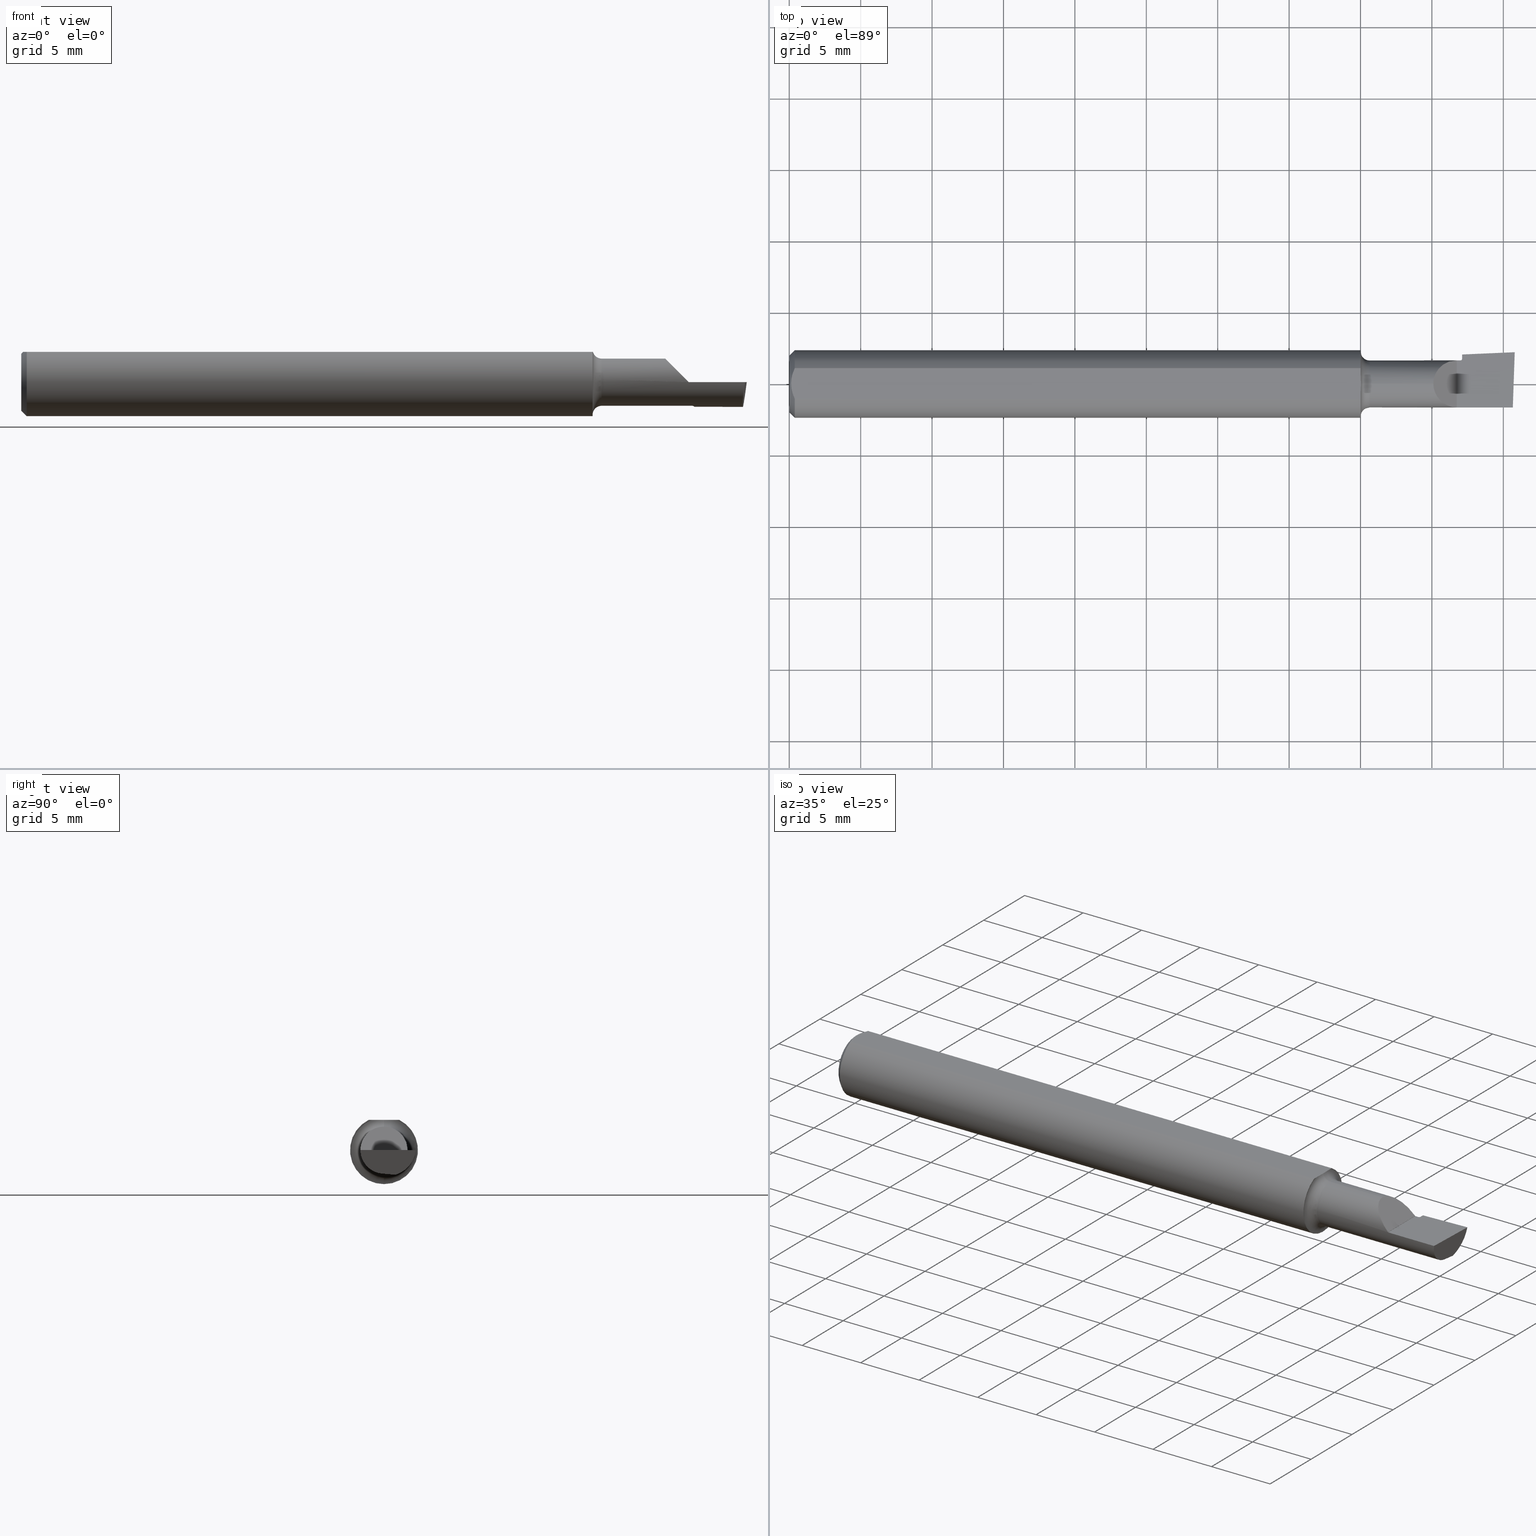
[diagram: canonical four-view strip — front | top / right | iso, engineering-drawing reading convention]
A machine part, canonical four-view strip (front | top / right | iso — engineering-drawing reading convention). The complete STEP part file that produces these views, byte-faithful:
ISO-10303-21;
HEADER;
FILE_DESCRIPTION (( 'STEP AP203' ),
    '1' );
FILE_NAME ('210228-BB153.STEP',
    '2024-04-17T21:50:22',
    ( '' ),
    ( '' ),
    'SwSTEP 2.0',
    'SolidWorks 2022',
    '' );
FILE_SCHEMA (( 'CONFIG_CONTROL_DESIGN' ));
ENDSEC;

DATA;
#1 = CARTESIAN_POINT ( 'NONE',  ( 2.000000000000000444, 0.000000000000000000, 0.000000000000000000 ) ) ;
#2 = CARTESIAN_POINT ( 'NONE',  ( 0.000000000000000000, 0.04793338999999999933, 0.08360000000000000764 ) ) ;
#3 = APPROVAL_DATE_TIME ( #458, #214 ) ;
#4 = CARTESIAN_POINT ( 'NONE',  ( 0.000000000000000000, 0.000000000000000000, 0.000000000000000000 ) ) ;
#5 = ORIENTED_EDGE ( 'NONE', *, *, #109, .F. ) ;
#6 = AXIS2_PLACEMENT_3D ( 'NONE', #2, #197, #360 ) ;
#7 = AXIS2_PLACEMENT_3D ( 'NONE', #21, #379, #319 ) ;
#8 = CARTESIAN_POINT ( 'NONE',  ( 0.01203159747439211912, 0.03549478314559915276, 0.08360000000000003539 ) ) ;
#9 =( BOUNDED_CURVE ( )  B_SPLINE_CURVE ( 3, ( #621, #160, #376, #426 ),
 .UNSPECIFIED., .F., .T. ) 
 B_SPLINE_CURVE_WITH_KNOTS ( ( 4, 4 ),
 ( 0.000000000000000000, 1.561565426471250406 ),
 .UNSPECIFIED. ) 
 CURVE ( )  GEOMETRIC_REPRESENTATION_ITEM ( )  RATIONAL_B_SPLINE_CURVE ( ( 1.000000000000000000, 0.8069085694611369819, 0.8069085694611369819, 1.000000000000000000 ) ) 
 REPRESENTATION_ITEM ( '' )  );
#10 = ORIENTED_EDGE ( 'NONE', *, *, #42, .T. ) ;
#11 = EDGE_CURVE ( 'NONE', #529, #566, #76, .T. ) ;
#12 = PLANE ( 'NONE',  #527 ) ;
#13 = CARTESIAN_POINT ( 'NONE',  ( 0.000000000000000000, 7.960204194457796709E-18, -0.06500000000000000222 ) ) ;
#14 = EDGE_CURVE ( 'NONE', #72, #154, #625, .T. ) ;
#15 = CARTESIAN_POINT ( 'NONE',  ( 0.005000000000001862330, 0.007340705555993278647, 0.08359999999999999376 ) ) ;
#16 = ORIENTED_EDGE ( 'NONE', *, *, #560, .T. ) ;
#17 = VECTOR ( 'NONE', #165, 39.37007874015748143 ) ;
#18 = APPROVAL_STATUS ( 'not_yet_approved' ) ;
#19 = EDGE_CURVE ( 'NONE', #222, #607, #577, .T. ) ;
#20 = TOROIDAL_SURFACE ( 'NONE', #293, 0.06999999999999999278, 0.005000000000000000104 ) ;
#21 = CARTESIAN_POINT ( 'NONE',  ( 1.599999999999999867, 0.000000000000000000, 0.000000000000000000 ) ) ;
#22 = ORIENTED_EDGE ( 'NONE', *, *, #85, .F. ) ;
#23 = PRODUCT_RELATED_PRODUCT_CATEGORY ( 'detail', '', ( #54 ) ) ;
#24 = LINE ( 'NONE', #368, #207 ) ;
#25 = CARTESIAN_POINT ( 'NONE',  ( 1.987646440754240684, -0.05308570468329874836, -0.06060389208524382537 ) ) ;
#26 = ORIENTED_EDGE ( 'NONE', *, *, #221, .F. ) ;
#27 = DIRECTION ( 'NONE',  ( -1.000000000000000000, -0.000000000000000000, -0.000000000000000000 ) ) ;
#28 = ORIENTED_EDGE ( 'NONE', *, *, #530, .T. ) ;
#29 = UNCERTAINTY_MEASURE_WITH_UNIT (LENGTH_MEASURE( 1.000000000000000082E-05 ), #409, 'distance_accuracy_value', 'NONE');
#30 = CIRCLE ( 'NONE', #44, 0.06999999999999999278 ) ;
#31 = CARTESIAN_POINT ( 'NONE',  ( 1.850000000000000311, -0.005665123278597547149, -0.06475265537596341936 ) ) ;
#32 = CONICAL_SURFACE ( 'NONE', #615, 0.09360000000000001652, 0.7853981633974471688 ) ;
#33 = DIRECTION ( 'NONE',  ( 0.000000000000000000, 0.000000000000000000, -1.000000000000000000 ) ) ;
#34 =( BOUNDED_CURVE ( )  B_SPLINE_CURVE ( 3, ( #333, #533, #342, #77 ),
 .UNSPECIFIED., .F., .T. ) 
 B_SPLINE_CURVE_WITH_KNOTS ( ( 4, 4 ),
 ( 4.721619880708336048, 6.283185307179586232 ),
 .UNSPECIFIED. ) 
 CURVE ( )  GEOMETRIC_REPRESENTATION_ITEM ( )  RATIONAL_B_SPLINE_CURVE ( ( 1.000000000000000000, 0.8069085694611370929, 0.8069085694611370929, 1.000000000000000000 ) ) 
 REPRESENTATION_ITEM ( '' )  );
#35 = CARTESIAN_POINT ( 'NONE',  ( 1.855000000000000648, 0.01579369460331282032, -0.06663005867329796494 ) ) ;
#36 = DIRECTION ( 'NONE',  ( -0.9990482215818576872, -0.04361938736533622213, 0.000000000000000000 ) ) ;
#37 = CARTESIAN_POINT ( 'NONE',  ( 1.994651758480620707, -0.06499966425809539095, -0.0002089170526278407846 ) ) ;
#38 = EDGE_CURVE ( 'NONE', #502, #429, #117, .T. ) ;
#39 = CARTESIAN_POINT ( 'NONE',  ( 1.840000000000000302, 0.09359999999999998876, -1.868634782302818344E-17 ) ) ;
#40 = ORIENTED_EDGE ( 'NONE', *, *, #558, .F. ) ;
#41 = CARTESIAN_POINT ( 'NONE',  ( 1.999986001855434736, 0.08759761744008441597, -1.868634782302818344E-17 ) ) ;
#42 = EDGE_CURVE ( 'NONE', #237, #566, #479, .T. ) ;
#43 = DIRECTION ( 'NONE',  ( -1.000000000000000000, -0.000000000000000000, -0.000000000000000000 ) ) ;
#44 = AXIS2_PLACEMENT_3D ( 'NONE', #505, #250, #555 ) ;
#45 = AXIS2_PLACEMENT_3D ( 'NONE', #223, #116, #627 ) ;
#46 = EDGE_LOOP ( 'NONE', ( #513, #618, #182, #332, #158, #5, #366, #211 ) ) ;
#47 = CARTESIAN_POINT ( 'NONE',  ( 1.757000000000000783, 0.04793338999999999933, 0.08360000000000000764 ) ) ;
#48 = ORIENTED_EDGE ( 'NONE', *, *, #14, .F. ) ;
#49 = DIRECTION ( 'NONE',  ( 0.000000000000000000, 0.000000000000000000, -1.000000000000000000 ) ) ;
#50 = DIRECTION ( 'NONE',  ( 0.000000000000000000, 0.000000000000000000, 1.000000000000000000 ) ) ;
#51 = LINE ( 'NONE', #509, #372 ) ;
#52 = CIRCLE ( 'NONE', #81, 0.06500000000000000222 ) ;
#53 = DIRECTION ( 'NONE',  ( 0.000000000000000000, 0.000000000000000000, 1.000000000000000000 ) ) ;
#54 = PRODUCT ( '210228-BB153', '210228-BB153', '', ( #251 ) ) ;
#55 = CALENDAR_DATE ( 2024, 17, 4 ) ;
#56 = CARTESIAN_POINT ( 'NONE',  ( 1.599999999999999867, 0.000000000000000000, 0.08999999999999999667 ) ) ;
#57 = ADVANCED_FACE ( 'NONE', ( #633 ), #248, .T. ) ;
#58 = VERTEX_POINT ( 'NONE', #434 ) ;
#59 = FACE_OUTER_BOUND ( 'NONE', #79, .T. ) ;
#60 = ORIENTED_EDGE ( 'NONE', *, *, #570, .T. ) ;
#61 = CLOSED_SHELL ( 'NONE', ( #347, #437, #57, #501, #508, #663, #274, #261, #408, #298, #357, #321, #64, #156, #325, #413, #659, #375 ) ) ;
#62 = AXIS2_PLACEMENT_3D ( 'NONE', #114, #74, #571 ) ;
#63 = LINE ( 'NONE', #632, #381 ) ;
#64 = ADVANCED_FACE ( 'NONE', ( #178 ), #343, .F. ) ;
#65 = DIRECTION ( 'NONE',  ( -0.000000000000000000, 0.000000000000000000, 1.000000000000000000 ) ) ;
#66 = VERTEX_POINT ( 'NONE', #386 ) ;
#67 = ORIENTED_EDGE ( 'NONE', *, *, #539, .F. ) ;
#68 = AXIS2_PLACEMENT_3D ( 'NONE', #193, #512, #53 ) ;
#69 = CALENDAR_DATE ( 2024, 17, 4 ) ;
#70 = DIRECTION ( 'NONE',  ( -1.000000000000000000, -0.000000000000000000, -0.000000000000000000 ) ) ;
#71 = ORIENTED_EDGE ( 'NONE', *, *, #109, .T. ) ;
#72 = VERTEX_POINT ( 'NONE', #597 ) ;
#73 = DESIGN_CONTEXT ( 'detailed design', #535, 'design' ) ;
#74 = DIRECTION ( 'NONE',  ( 0.9990482215818577982, 0.04361938736533622213, -0.000000000000000000 ) ) ;
#75 = ORIENTED_EDGE ( 'NONE', *, *, #367, .T. ) ;
#76 =( BOUNDED_CURVE ( )  B_SPLINE_CURVE ( 3, ( #320, #168, #260, #468 ),
 .UNSPECIFIED., .F., .T. ) 
 B_SPLINE_CURVE_WITH_KNOTS ( ( 4, 4 ),
 ( 4.991545124274583856, 6.471860874433886579 ),
 .UNSPECIFIED. ) 
 CURVE ( )  GEOMETRIC_REPRESENTATION_ITEM ( )  RATIONAL_B_SPLINE_CURVE ( ( 1.000000000000000000, 0.8255747308461860445, 0.8255747308461860445, 1.000000000000000000 ) ) 
 REPRESENTATION_ITEM ( '' )  );
#77 = CARTESIAN_POINT ( 'NONE',  ( 1.775600000000000511, 0.000000000000000000, 0.06500000000000000222 ) ) ;
#78 = LINE ( 'NONE', #438, #139 ) ;
#79 = EDGE_LOOP ( 'NONE', ( #113, #185, #10, #351, #401 ) ) ;
#80 = CARTESIAN_POINT ( 'NONE',  ( 1.852369354669507473, 0.002826491639987216854, -0.06549557541636719105 ) ) ;
#81 = AXIS2_PLACEMENT_3D ( 'NONE', #635, #382, #653 ) ;
#82 = DIRECTION ( 'NONE',  ( -0.7071067811865463515, 0.000000000000000000, 0.7071067811865486830 ) ) ;
#83 = CARTESIAN_POINT ( 'NONE',  ( 0.01500000000000188856, 0.000000000000000000, 0.000000000000000000 ) ) ;
#84 = LINE ( 'NONE', #125, #430 ) ;
#85 = EDGE_CURVE ( 'NONE', #335, #429, #302, .T. ) ;
#86 = ORIENTED_EDGE ( 'NONE', *, *, #42, .F. ) ;
#87 = DIRECTION ( 'NONE',  ( 0.000000000000000000, 0.000000000000000000, 1.000000000000000000 ) ) ;
#88 = DIRECTION ( 'NONE',  ( -1.000000000000000000, 0.000000000000000000, -0.000000000000000000 ) ) ;
#89 = ORIENTED_EDGE ( 'NONE', *, *, #247, .T. ) ;
#90 = APPLICATION_PROTOCOL_DEFINITION ( 'international standard', 'config_control_design', 1994, #499 ) ;
#91 = LINE ( 'NONE', #492, #228 ) ;
#92 = AXIS2_PLACEMENT_3D ( 'NONE', #1, #291, #50 ) ;
#93 = ORIENTED_EDGE ( 'NONE', *, *, #456, .F. ) ;
#94 = APPROVAL_STATUS ( 'not_yet_approved' ) ;
#95 = DIRECTION ( 'NONE',  ( 1.000000000000000000, 8.516783790608731163E-18, -1.073631536549218441E-16 ) ) ;
#96 = VERTEX_POINT ( 'NONE', #547 ) ;
#97 = DIRECTION ( 'NONE',  ( 0.000000000000000000, 0.000000000000000000, 1.000000000000000000 ) ) ;
#98 = DIRECTION ( 'NONE',  ( 0.000000000000000000, 0.000000000000000000, 1.000000000000000000 ) ) ;
#99 = CC_DESIGN_PERSON_AND_ORGANIZATION_ASSIGNMENT ( #658, #403, ( #306 ) ) ;
#100 = DATE_AND_TIME ( #245, #268 ) ;
#101 = CARTESIAN_POINT ( 'NONE',  ( 2.000001177757728232, 0.08803385514183426075, -1.868634782302818344E-17 ) ) ;
#102 = AXIS2_PLACEMENT_3D ( 'NONE', #4, #400, #204 ) ;
#103 = APPROVAL_ROLE ( '' ) ;
#104 = EDGE_CURVE ( 'NONE', #519, #429, #550, .T. ) ;
#105 = DIRECTION ( 'NONE',  ( -1.000000000000000000, -0.000000000000000000, -0.000000000000000000 ) ) ;
#106 = ORIENTED_EDGE ( 'NONE', *, *, #279, .T. ) ;
#107 = DIRECTION ( 'NONE',  ( 0.000000000000000000, 0.000000000000000000, -1.000000000000000000 ) ) ;
#108 = ORIENTED_EDGE ( 'NONE', *, *, #85, .T. ) ;
#109 = EDGE_CURVE ( 'NONE', #639, #222, #78, .T. ) ;
#110 = CIRCLE ( 'NONE', #623, 0.08999999999999999667 ) ;
#111 = CC_DESIGN_APPROVAL ( #214, ( #176 ) ) ;
#112 = LINE ( 'NONE', #619, #582 ) ;
#113 = ORIENTED_EDGE ( 'NONE', *, *, #201, .F. ) ;
#114 = CARTESIAN_POINT ( 'NONE',  ( 1.999999999999999778, 0.008000000000000007105, 0.008000000000000000167 ) ) ;
#115 = ORIENTED_EDGE ( 'NONE', *, *, #292, .T. ) ;
#116 = DIRECTION ( 'NONE',  ( -0.9919466430058313522, 0.03450798790307643693, 0.1218649096349841282 ) ) ;
#117 = LINE ( 'NONE', #427, #451 ) ;
#118 = VECTOR ( 'NONE', #345, 39.37007874015748143 ) ;
#119 = CARTESIAN_POINT ( 'NONE',  ( 0.01500000000000188856, 0.04209513035969836975, 0.08360000000000000764 ) ) ;
#120 = ORIENTED_EDGE ( 'NONE', *, *, #264, .F. ) ;
#121 = CARTESIAN_POINT ( 'NONE',  ( 1.840000000000000302, 0.000000000000000000, 0.000000000000000000 ) ) ;
#122 = CARTESIAN_POINT ( 'NONE',  ( 0.005000000000001869269, 1.023804700932481731E-17, 0.08360000000000000764 ) ) ;
#123 = ORIENTED_EDGE ( 'NONE', *, *, #194, .F. ) ;
#124 = DIRECTION ( 'NONE',  ( -0.000000000000000000, 0.000000000000000000, -1.000000000000000000 ) ) ;
#125 = CARTESIAN_POINT ( 'NONE',  ( 1.840000000000000302, 0.09359999999999998876, 0.0006000000000001076087 ) ) ;
#126 = EDGE_CURVE ( 'NONE', #544, #639, #110, .T. ) ;
#127 = EDGE_LOOP ( 'NONE', ( #22, #340, #273, #213 ) ) ;
#128 = VECTOR ( 'NONE', #604, 39.37007874015748143 ) ;
#129 = CARTESIAN_POINT ( 'NONE',  ( 1.999986001855434736, 0.08759761744008441597, -1.868634782302818344E-17 ) ) ;
#130 = CIRCLE ( 'NONE', #7, 0.06500000000000000222 ) ;
#131 = CARTESIAN_POINT ( 'NONE',  ( 0.005981945000910308084, -0.01453549720624408223, 0.08360000000000000764 ) ) ;
#132 = CARTESIAN_POINT ( 'NONE',  ( 0.005000000000001869269, 1.023804700932481731E-17, 0.08360000000000000764 ) ) ;
#133 = DIRECTION ( 'NONE',  ( 0.000000000000000000, 0.000000000000000000, 1.000000000000000000 ) ) ;
#134 = ORIENTED_EDGE ( 'NONE', *, *, #147, .T. ) ;
#135 = DIRECTION ( 'NONE',  ( 0.000000000000000000, 0.000000000000000000, -1.000000000000000000 ) ) ;
#136 = CARTESIAN_POINT ( 'NONE',  ( 0.01500000000000188856, 0.000000000000000000, 0.000000000000000000 ) ) ;
#137 = EDGE_LOOP ( 'NONE', ( #172, #553 ) ) ;
#138 = APPLICATION_PROTOCOL_DEFINITION ( 'international standard', 'config_control_design', 1994, #535 ) ;
#139 = VECTOR ( 'NONE', #542, 39.37007874015748143 ) ;
#140 = CARTESIAN_POINT ( 'NONE',  ( 1.855000000000000204, 0.02021677419128700345, -0.06701702799511861930 ) ) ;
#141 = CIRCLE ( 'NONE', #240, 0.07859999999999815745 ) ;
#142 = EDGE_LOOP ( 'NONE', ( #89, #348, #418, #391, #572, #620, #637 ) ) ;
#143 = DATE_AND_TIME ( #454, #507 ) ;
#144 = EDGE_CURVE ( 'NONE', #583, #607, #642, .T. ) ;
#145 = DIRECTION ( 'NONE',  ( -1.000000000000000000, -0.000000000000000000, -0.000000000000000000 ) ) ;
#146 = CARTESIAN_POINT ( 'NONE',  ( 1.989694924637884332, 0.03212651270882478649, -0.06805899510096122262 ) ) ;
#147 = EDGE_CURVE ( 'NONE', #66, #58, #84, .T. ) ;
#148 = DATE_TIME_ROLE ( 'creation_date' ) ;
#149 = DIRECTION ( 'NONE',  ( 0.000000000000000000, 0.08715574274765823526, 0.9961946980917455452 ) ) ;
#150 = CIRCLE ( 'NONE', #217, 0.09360000000000001652 ) ;
#151 = EDGE_CURVE ( 'NONE', #335, #237, #457, .T. ) ;
#152 =( NAMED_UNIT ( * ) SI_UNIT ( $, .STERADIAN. ) SOLID_ANGLE_UNIT ( ) );
#153 = CARTESIAN_POINT ( 'NONE',  ( -3.937007874019685528E-05, -0.005665123278597553221, -0.06475265537596341936 ) ) ;
#154 = VERTEX_POINT ( 'NONE', #287 ) ;
#155 = COORDINATED_UNIVERSAL_TIME_OFFSET ( 8, 0, .BEHIND. ) ;
#156 = ADVANCED_FACE ( 'NONE', ( #593 ), #446, .F. ) ;
#157 = DIRECTION ( 'NONE',  ( -1.000000000000000000, -0.000000000000000000, -0.000000000000000000 ) ) ;
#158 = ORIENTED_EDGE ( 'NONE', *, *, #19, .F. ) ;
#159 = SHAPE_DEFINITION_REPRESENTATION ( #546, #651 ) ;
#160 = CARTESIAN_POINT ( 'NONE',  ( 1.775600000000000955, -0.03779801798803825857, 0.06500000000000000222 ) ) ;
#161 = VERTEX_POINT ( 'NONE', #236 ) ;
#162 = AXIS2_PLACEMENT_3D ( 'NONE', #308, #145, #98 ) ;
#163 = CC_DESIGN_PERSON_AND_ORGANIZATION_ASSIGNMENT ( #466, #524, ( #176 ) ) ;
#164 = DIRECTION ( 'NONE',  ( -0.000000000000000000, 1.000000000000000000, 1.224646799147353207E-16 ) ) ;
#165 = DIRECTION ( 'NONE',  ( -1.000000000000000000, -0.000000000000000000, -0.000000000000000000 ) ) ;
#166 = DATE_AND_TIME ( #69, #198 ) ;
#167 = DIRECTION ( 'NONE',  ( -1.000000000000000000, -0.000000000000000000, -0.000000000000000000 ) ) ;
#168 = CARTESIAN_POINT ( 'NONE',  ( 1.990306868046896271, -0.06488588929797120541, -0.03560734009195623551 ) ) ;
#169 = ORIENTED_EDGE ( 'NONE', *, *, #151, .F. ) ;
#170 = DATE_AND_TIME ( #218, #341 ) ;
#171 = DIRECTION ( 'NONE',  ( 1.000000000000000000, 0.000000000000000000, 0.000000000000000000 ) ) ;
#172 = ORIENTED_EDGE ( 'NONE', *, *, #224, .T. ) ;
#173 = EDGE_CURVE ( 'NONE', #271, #629, #91, .T. ) ;
#174 = VECTOR ( 'NONE', #95, 39.37007874015748143 ) ;
#175 = ORIENTED_EDGE ( 'NONE', *, *, #147, .F. ) ;
#176 = PRODUCT_DEFINITION_FORMATION_WITH_SPECIFIED_SOURCE ( 'ANY', '', #54, .NOT_KNOWN. ) ;
#177 = CARTESIAN_POINT ( 'NONE',  ( 1.575000000000000178, -0.02777769619496649883, 0.08360000000000000764 ) ) ;
#178 = FACE_OUTER_BOUND ( 'NONE', #378, .T. ) ;
#179 = CARTESIAN_POINT ( 'NONE',  ( 1.840000000000000302, 0.09359999999999998876, -1.868634782302818344E-17 ) ) ;
#180 = EDGE_CURVE ( 'NONE', #222, #161, #150, .T. ) ;
#181 = DIRECTION ( 'NONE',  ( 0.000000000000000000, -0.9961946980917454342, 0.08715574274765822138 ) ) ;
#182 = ORIENTED_EDGE ( 'NONE', *, *, #441, .T. ) ;
#183 = CARTESIAN_POINT ( 'NONE',  ( 1.855000000000000204, 0.02021677419128700345, -0.06701702799511861930 ) ) ;
#184 = CARTESIAN_POINT ( 'NONE',  ( 1.850000000000000311, 0.000000000000000000, 0.000000000000000000 ) ) ;
#185 = ORIENTED_EDGE ( 'NONE', *, *, #151, .T. ) ;
#186 = AXIS2_PLACEMENT_3D ( 'NONE', #184, #43, #338 ) ;
#187 = DIRECTION ( 'NONE',  ( -1.000000000000000000, -0.000000000000000000, -0.000000000000000000 ) ) ;
#188 = LINE ( 'NONE', #641, #304 ) ;
#189 = ORIENTED_EDGE ( 'NONE', *, *, #11, .F. ) ;
#190 = LINE ( 'NONE', #549, #118 ) ;
#191 = DIRECTION ( 'NONE',  ( 0.7071067811865483499, 0.000000000000000000, -0.7071067811865466846 ) ) ;
#192 = ORIENTED_EDGE ( 'NONE', *, *, #264, .T. ) ;
#193 = CARTESIAN_POINT ( 'NONE',  ( 1.599999999999999867, 0.000000000000000000, 0.000000000000000000 ) ) ;
#194 = EDGE_CURVE ( 'NONE', #587, #72, #238, .T. ) ;
#195 = ORIENTED_EDGE ( 'NONE', *, *, #480, .T. ) ;
#196 = APPROVAL_DATE_TIME ( #100, #337 ) ;
#197 = DIRECTION ( 'NONE',  ( -0.000000000000000000, 0.000000000000000000, -1.000000000000000000 ) ) ;
#198 = LOCAL_TIME ( 14, 50, 22.00000000000000000, #626 ) ;
#199 = DIRECTION ( 'NONE',  ( 0.1218275818249038717, -0.003190167502629706348, 0.9925461516413236485 ) ) ;
#200 = CARTESIAN_POINT ( 'NONE',  ( 1.775600000000000511, 0.000000000000000000, 0.06500000000000000222 ) ) ;
#201 = EDGE_CURVE ( 'NONE', #335, #356, #188, .T. ) ;
#202 = CARTESIAN_POINT ( 'NONE',  ( 1.850000000000000311, 0.000000000000000000, 0.000000000000000000 ) ) ;
#203 = FACE_OUTER_BOUND ( 'NONE', #137, .T. ) ;
#204 = DIRECTION ( 'NONE',  ( 0.000000000000000000, 0.000000000000000000, 1.000000000000000000 ) ) ;
#205 = VECTOR ( 'NONE', #36, 39.37007874015748143 ) ;
#206 = ORIENTED_EDGE ( 'NONE', *, *, #224, .F. ) ;
#207 = VECTOR ( 'NONE', #474, 39.37007874015748143 ) ;
#208 = B_SPLINE_CURVE_WITH_KNOTS ( 'NONE', 3,
 ( #385, #588, #80, #281, #35, #183 ),
 .UNSPECIFIED., .F., .F.,
 ( 4, 2, 4 ),
 ( -8.126499861902691755E-06, 0.0003288128753654290639, 0.0006657522505927608754 ),
 .UNSPECIFIED. ) ;
#209 = PERSON_AND_ORGANIZATION ( #631, #463 ) ;
#210 = CARTESIAN_POINT ( 'NONE',  ( 0.009483687754785769669, 0.02856776309113262177, 0.08360000000000003539 ) ) ;
#211 = ORIENTED_EDGE ( 'NONE', *, *, #536, .F. ) ;
#212 = CARTESIAN_POINT ( 'NONE',  ( 1.855000000000000204, 0.06500000000000000222, 0.000000000000000000 ) ) ;
#213 = ORIENTED_EDGE ( 'NONE', *, *, #38, .T. ) ;
#214 = APPROVAL ( #563, 'UNSPECIFIED' ) ;
#215 = CARTESIAN_POINT ( 'NONE',  ( 1.575000000000000178, 0.1650000000000000078, 0.000000000000000000 ) ) ;
#216 = ORIENTED_EDGE ( 'NONE', *, *, #313, .T. ) ;
#217 = AXIS2_PLACEMENT_3D ( 'NONE', #484, #442, #33 ) ;
#218 = CALENDAR_DATE ( 2024, 17, 4 ) ;
#219 = DIRECTION ( 'NONE',  ( 1.000000000000000000, -0.000000000000000000, -0.000000000000000000 ) ) ;
#220 = ORIENTED_EDGE ( 'NONE', *, *, #126, .T. ) ;
#221 = EDGE_CURVE ( 'NONE', #435, #544, #493, .T. ) ;
#222 = VERTEX_POINT ( 'NONE', #645 ) ;
#223 = CARTESIAN_POINT ( 'NONE',  ( 1.939086209087548252, 0.08959508375131486346, -0.4962730758206617687 ) ) ;
#224 = EDGE_CURVE ( 'NONE', #271, #574, #605, .T. ) ;
#225 = DIRECTION ( 'NONE',  ( -0.02394144769889285790, -0.9959091512946225411, 0.08713076064000384313 ) ) ;
#226 = CARTESIAN_POINT ( 'NONE',  ( 1.575666797554629461, -0.01111010775643349498, 0.08360000000000000764 ) ) ;
#227 = ORIENTED_EDGE ( 'NONE', *, *, #344, .F. ) ;
#228 = VECTOR ( 'NONE', #191, 39.37007874015748143 ) ;
#229 = ORIENTED_EDGE ( 'NONE', *, *, #486, .T. ) ;
#230 = APPROVAL_PERSON_ORGANIZATION ( #406, #337, #296 ) ;
#231 = EDGE_CURVE ( 'NONE', #356, #502, #30, .T. ) ;
#232 = CARTESIAN_POINT ( 'NONE',  ( 0.01499999999997319970, -0.04209513035984148444, 0.08360000000000000764 ) ) ;
#233 = DIRECTION ( 'NONE',  ( -1.000000000000000000, -0.000000000000000000, -0.000000000000000000 ) ) ;
#234 = CC_DESIGN_DATE_AND_TIME_ASSIGNMENT ( #143, #148, ( #306 ) ) ;
#235 = CARTESIAN_POINT ( 'NONE',  ( 1.575000000000000178, 0.02777908199770195985, 0.08360000000000000764 ) ) ;
#236 = CARTESIAN_POINT ( 'NONE',  ( 1.575000000000000178, 0.04209513035969836975, 0.08360000000000000764 ) ) ;
#237 = VERTEX_POINT ( 'NONE', #146 ) ;
#238 = CIRCLE ( 'NONE', #186, 0.06500000000000000222 ) ;
#239 = CARTESIAN_POINT ( 'NONE',  ( 1.992017512602473950, 0.06339401173841231751, -0.05800766153860094365 ) ) ;
#240 = AXIS2_PLACEMENT_3D ( 'NONE', #436, #27, #135 ) ;
#241 = CARTESIAN_POINT ( 'NONE',  ( 1.855000000000000204, 0.07804055913548293977, -0.03204518438839076139 ) ) ;
#242 = ORIENTED_EDGE ( 'NONE', *, *, #247, .F. ) ;
#243 = CARTESIAN_POINT ( 'NONE',  ( 0.009483685532752042513, -0.02856415438847174915, 0.08359999999999997988 ) ) ;
#244 = VERTEX_POINT ( 'NONE', #200 ) ;
#245 = CALENDAR_DATE ( 2024, 17, 4 ) ;
#246 = CARTESIAN_POINT ( 'NONE',  ( 0.000000000000000000, 0.000000000000000000, 0.000000000000000000 ) ) ;
#247 = EDGE_CURVE ( 'NONE', #497, #519, #665, .T. ) ;
#248 = CONICAL_SURFACE ( 'NONE', #315, 0.09360000000000001652, 0.7853981633974471688 ) ;
#249 = PLANE ( 'NONE',  #506 ) ;
#250 = DIRECTION ( 'NONE',  ( 1.000000000000000000, 0.000000000000000000, 0.000000000000000000 ) ) ;
#251 = MECHANICAL_CONTEXT ( 'NONE', #499, 'mechanical' ) ;
#252 = PLANE ( 'NONE',  #339 ) ;
#253 = ORIENTED_EDGE ( 'NONE', *, *, #650, .F. ) ;
#254 = CYLINDRICAL_SURFACE ( 'NONE', #102, 0.06500000000000000222 ) ;
#255 = CIRCLE ( 'NONE', #579, 0.06500000000000000222 ) ;
#256 = AXIS2_PLACEMENT_3D ( 'NONE', #179, #124, #541 ) ;
#257 = ORIENTED_EDGE ( 'NONE', *, *, #221, .T. ) ;
#258 = PERSON_AND_ORGANIZATION_ROLE ( 'creator' ) ;
#259 = CARTESIAN_POINT ( 'NONE',  ( 0.01500000000000188856, 0.04209513035969836975, 0.08360000000000000764 ) ) ;
#260 = CARTESIAN_POINT ( 'NONE',  ( 1.987938684748457696, -0.04092902677841792763, -0.06166746358805715728 ) ) ;
#261 = ADVANCED_FACE ( 'NONE', ( #203 ), #249, .F. ) ;
#262 = DIRECTION ( 'NONE',  ( 0.000000000000000000, 0.000000000000000000, -1.000000000000000000 ) ) ;
#263 = ORIENTED_EDGE ( 'NONE', *, *, #394, .T. ) ;
#264 = EDGE_CURVE ( 'NONE', #96, #58, #255, .T. ) ;
#265 = CARTESIAN_POINT ( 'NONE',  ( 0.000000000000000000, 0.000000000000000000, 0.06500000000000000222 ) ) ;
#266 = VERTEX_POINT ( 'NONE', #405 ) ;
#267 = AXIS2_PLACEMENT_3D ( 'NONE', #39, #88, #277 ) ;
#268 = LOCAL_TIME ( 14, 50, 22.00000000000000000, #359 ) ;
#269 = CARTESIAN_POINT ( 'NONE',  ( 0.01500000000000188856, 0.000000000000000000, 0.000000000000000000 ) ) ;
#270 = ORIENTED_EDGE ( 'NONE', *, *, #231, .F. ) ;
#271 = VERTEX_POINT ( 'NONE', #459 ) ;
#272 = CARTESIAN_POINT ( 'NONE',  ( 1.574999999999999956, 1.102182119232618065E-17, -0.08999999999999999667 ) ) ;
#273 = ORIENTED_EDGE ( 'NONE', *, *, #231, .T. ) ;
#274 = ADVANCED_FACE ( 'NONE', ( #613 ), #611, .F. ) ;
#275 = ORIENTED_EDGE ( 'NONE', *, *, #173, .T. ) ;
#276 = CARTESIAN_POINT ( 'NONE',  ( 1.575000000000000178, -0.03333226664959939439, 0.08360000000000000764 ) ) ;
#277 = DIRECTION ( 'NONE',  ( -0.000000000000000000, 0.000000000000000000, 1.000000000000000000 ) ) ;
#278 = MANIFOLD_SOLID_BREP ( 'CR-Radial Relief', #61 ) ;
#279 = EDGE_CURVE ( 'NONE', #266, #556, #526, .T. ) ;
#280 = CIRCLE ( 'NONE', #444, 0.09360000000000001652 ) ;
#281 = CARTESIAN_POINT ( 'NONE',  ( 1.854260958840901807, 0.01143562536892322491, -0.06624877702042776539 ) ) ;
#282 = CARTESIAN_POINT ( 'NONE',  ( 1.989694924637884332, 0.03212651270882478649, -0.06805899510096122262 ) ) ;
#283 = CARTESIAN_POINT ( 'NONE',  ( 1.989694924637884332, 0.03212651270882478649, -0.06805899510096122262 ) ) ;
#284 = CARTESIAN_POINT ( 'NONE',  ( 1.900738563270831794, 0.02906244556632041690, -0.06779092396170981194 ) ) ;
#285 = ORIENTED_EDGE ( 'NONE', *, *, #416, .T. ) ;
#286 = DIRECTION ( 'NONE',  ( -1.000000000000000000, -0.000000000000000000, -0.000000000000000000 ) ) ;
#287 = CARTESIAN_POINT ( 'NONE',  ( 1.599999999999999867, 9.491012693391984829E-18, -0.06500000000000000222 ) ) ;
#288 = ORIENTED_EDGE ( 'NONE', *, *, #394, .F. ) ;
#289 = AXIS2_PLACEMENT_3D ( 'NONE', #538, #233, #389 ) ;
#290 = AXIS2_PLACEMENT_3D ( 'NONE', #610, #97, #603 ) ;
#291 = DIRECTION ( 'NONE',  ( -1.000000000000000000, -0.000000000000000000, -0.000000000000000000 ) ) ;
#292 = EDGE_CURVE ( 'NONE', #634, #566, #305, .T. ) ;
#293 = AXIS2_PLACEMENT_3D ( 'NONE', #202, #503, #300 ) ;
#294 = DIRECTION ( 'NONE',  ( -0.7071067811865486830, 0.000000000000000000, -0.7071067811865463515 ) ) ;
#295 = ORIENTED_EDGE ( 'NONE', *, *, #441, .F. ) ;
#296 = APPROVAL_ROLE ( '' ) ;
#297 = CARTESIAN_POINT ( 'NONE',  ( 1.840000000000000302, 0.000000000000000000, 0.000000000000000000 ) ) ;
#298 = ADVANCED_FACE ( 'NONE', ( #410 ), #514, .F. ) ;
#299 = EDGE_LOOP ( 'NONE', ( #86, #28, #242, #253, #477 ) ) ;
#300 = DIRECTION ( 'NONE',  ( 0.000000000000000000, 0.000000000000000000, 1.000000000000000000 ) ) ;
#301 = FACE_OUTER_BOUND ( 'NONE', #652, .T. ) ;
#302 =( BOUNDED_CURVE ( )  B_SPLINE_CURVE ( 3, ( #648, #590, #241, #350 ),
 .UNSPECIFIED., .F., .F. ) 
 B_SPLINE_CURVE_WITH_KNOTS ( ( 4, 4 ),
 ( 5.040818682804456330, 6.182922137095659743 ),
 .UNSPECIFIED. ) 
 CURVE ( )  GEOMETRIC_REPRESENTATION_ITEM ( )  RATIONAL_B_SPLINE_CURVE ( ( 1.000000000000000000, 0.8942219759777954025, 0.8942219759777954025, 1.000000000000000000 ) ) 
 REPRESENTATION_ITEM ( '' )  );
#303 = CARTESIAN_POINT ( 'NONE',  ( 1.933783156355727062, -0.06340542776733958108, -0.4961139287315173285 ) ) ;
#304 = VECTOR ( 'NONE', #181, 39.37007874015748854 ) ;
#305 = LINE ( 'NONE', #557, #174 ) ;
#306 = PRODUCT_DEFINITION ( 'UNKNOWN', '', #176, #73 ) ;
#307 = COORDINATED_UNIVERSAL_TIME_OFFSET ( 8, 0, .BEHIND. ) ;
#308 = CARTESIAN_POINT ( 'NONE',  ( 0.000000000000000000, 0.000000000000000000, 0.000000000000000000 ) ) ;
#309 = APPROVAL_ROLE ( '' ) ;
#310 = FACE_OUTER_BOUND ( 'NONE', #655, .T. ) ;
#311 = DIMENSIONAL_EXPONENTS ( 1.000000000000000000, 0.000000000000000000, 0.000000000000000000, 0.000000000000000000, 0.000000000000000000, 0.000000000000000000, 0.000000000000000000 ) ;
#312 = ORIENTED_EDGE ( 'NONE', *, *, #367, .F. ) ;
#313 = EDGE_CURVE ( 'NONE', #630, #587, #51, .T. ) ;
#314 = CARTESIAN_POINT ( 'NONE',  ( 1.994677413158865376, -0.06500000000000002998, -6.829619984160658046E-17 ) ) ;
#315 = AXIS2_PLACEMENT_3D ( 'NONE', #136, #534, #383 ) ;
#316 = LOCAL_TIME ( 14, 50, 22.00000000000000000, #307 ) ;
#317 = ORIENTED_EDGE ( 'NONE', *, *, #558, .T. ) ;
#318 = DATE_TIME_ROLE ( 'classification_date' ) ;
#319 = DIRECTION ( 'NONE',  ( 0.000000000000000000, 0.000000000000000000, 1.000000000000000000 ) ) ;
#320 = CARTESIAN_POINT ( 'NONE',  ( 1.994651758480620707, -0.06499966425809539095, -0.0002089170526278407846 ) ) ;
#321 = ADVANCED_FACE ( 'NONE', ( #301 ), #455, .T. ) ;
#322 = PERSON_AND_ORGANIZATION ( #631, #463 ) ;
#323 = DIRECTION ( 'NONE',  ( 0.000000000000000000, -1.224646799147352961E-16, 1.000000000000000000 ) ) ;
#324 = DIRECTION ( 'NONE',  ( -1.000000000000000000, -0.000000000000000000, -0.000000000000000000 ) ) ;
#325 = ADVANCED_FACE ( 'NONE', ( #59 ), #252, .F. ) ;
#326 = CARTESIAN_POINT ( 'NONE',  ( 1.855000000000000204, 0.08126739189054085766, -1.894732701424001633E-17 ) ) ;
#327 = DIRECTION ( 'NONE',  ( 0.000000000000000000, 1.000000000000000000, 0.000000000000000000 ) ) ;
#328 = VECTOR ( 'NONE', #225, 39.37007874015748143 ) ;
#329 = AXIS2_PLACEMENT_3D ( 'NONE', #269, #567, #107 ) ;
#330 = ORIENTED_EDGE ( 'NONE', *, *, #599, .T. ) ;
#331 = CARTESIAN_POINT ( 'NONE',  ( 1.575000000000000178, 0.03333226664959939439, 0.08360000000000000764 ) ) ;
#332 = ORIENTED_EDGE ( 'NONE', *, *, #144, .T. ) ;
#333 = CARTESIAN_POINT ( 'NONE',  ( 1.840000000000000302, 0.06499723071023871812, 0.0006000000000001076087 ) ) ;
#334 =( BOUNDED_CURVE ( )  B_SPLINE_CURVE ( 3, ( #283, #239, #491, #129 ),
 .UNSPECIFIED., .F., .T. ) 
 B_SPLINE_CURVE_WITH_KNOTS ( ( 4, 4 ),
 ( 4.021702596540523089, 5.179980591436610382 ),
 .UNSPECIFIED. ) 
 CURVE ( )  GEOMETRIC_REPRESENTATION_ITEM ( )  RATIONAL_B_SPLINE_CURVE ( ( 1.000000000000000000, 0.8912894598796772261, 0.8912894598796772261, 1.000000000000000000 ) ) 
 REPRESENTATION_ITEM ( '' )  );
#335 = VERTEX_POINT ( 'NONE', #404 ) ;
#336 = CARTESIAN_POINT ( 'NONE',  ( 1.575245929109221787, -0.02222169579281116011, 0.08359999999999997988 ) ) ;
#337 = APPROVAL ( #94, 'UNSPECIFIED' ) ;
#338 = DIRECTION ( 'NONE',  ( 0.000000000000000000, 0.000000000000000000, 1.000000000000000000 ) ) ;
#339 = AXIS2_PLACEMENT_3D ( 'NONE', #153, #149, #660 ) ;
#340 = ORIENTED_EDGE ( 'NONE', *, *, #201, .T. ) ;
#341 = LOCAL_TIME ( 14, 50, 22.00000000000000000, #155 ) ;
#342 = CARTESIAN_POINT ( 'NONE',  ( 1.775600000000000733, 0.03779801798803825164, 0.06499999999999998834 ) ) ;
#343 = PLANE ( 'NONE',  #551 ) ;
#344 = EDGE_CURVE ( 'NONE', #502, #587, #420, .T. ) ;
#345 = DIRECTION ( 'NONE',  ( 0.000000000000000000, -1.000000000000000000, 0.000000000000000000 ) ) ;
#346 = CARTESIAN_POINT ( 'NONE',  ( 0.01202468825749296311, -0.03547942025930517912, 0.08360000000000000764 ) ) ;
#347 = ADVANCED_FACE ( 'NONE', ( #310 ), #254, .T. ) ;
#348 = ORIENTED_EDGE ( 'NONE', *, *, #104, .T. ) ;
#349 = CARTESIAN_POINT ( 'NONE',  ( 1.599999999999999867, 0.000000000000000000, 0.06500000000000000222 ) ) ;
#350 = CARTESIAN_POINT ( 'NONE',  ( 1.855000000000000204, 0.08126739189054085766, -1.894732701424001633E-17 ) ) ;
#351 = ORIENTED_EDGE ( 'NONE', *, *, #292, .F. ) ;
#352 = CIRCLE ( 'NONE', #402, 0.06500000000000000222 ) ;
#353 = CYLINDRICAL_SURFACE ( 'NONE', #92, 0.09360000000000001652 ) ;
#354 = DIRECTION ( 'NONE',  ( 0.000000000000000000, 0.000000000000000000, -1.000000000000000000 ) ) ;
#355 = EDGE_CURVE ( 'NONE', #574, #583, #365, .T. ) ;
#356 = VERTEX_POINT ( 'NONE', #140 ) ;
#357 = ADVANCED_FACE ( 'NONE', ( #450 ), #609, .T. ) ;
#358 = DIRECTION ( 'NONE',  ( 0.000000000000000000, 0.000000000000000000, -1.000000000000000000 ) ) ;
#359 = COORDINATED_UNIVERSAL_TIME_OFFSET ( 8, 0, .BEHIND. ) ;
#360 = DIRECTION ( 'NONE',  ( -1.000000000000000000, 0.000000000000000000, 0.000000000000000000 ) ) ;
#361 = CC_DESIGN_PERSON_AND_ORGANIZATION_ASSIGNMENT ( #209, #258, ( #176 ) ) ;
#362 = PERSON_AND_ORGANIZATION ( #631, #463 ) ;
#363 = AXIS2_PLACEMENT_3D ( 'NONE', #393, #617, #354 ) ;
#364 = CARTESIAN_POINT ( 'NONE',  ( 1.850000000000000311, 0.06999999999999999278, 0.000000000000000000 ) ) ;
#365 = LINE ( 'NONE', #565, #128 ) ;
#366 = ORIENTED_EDGE ( 'NONE', *, *, #599, .F. ) ;
#367 = EDGE_CURVE ( 'NONE', #244, #58, #9, .T. ) ;
#368 = CARTESIAN_POINT ( 'NONE',  ( 1.840000000000000302, 0.09359999999999998876, -1.868634782302818344E-17 ) ) ;
#369 = ORIENTED_EDGE ( 'NONE', *, *, #19, .T. ) ;
#370 = SECURITY_CLASSIFICATION_LEVEL ( 'unclassified' ) ;
#371 = CARTESIAN_POINT ( 'NONE',  ( 0.01500000000000188856, 0.000000000000000000, 0.000000000000000000 ) ) ;
#372 = VECTOR ( 'NONE', #453, 39.37007874015748143 ) ;
#373 = CC_DESIGN_SECURITY_CLASSIFICATION ( #485, ( #176 ) ) ;
#374 = EDGE_LOOP ( 'NONE', ( #423, #257, #220, #71, #387 ) ) ;
#375 = ADVANCED_FACE ( 'NONE', ( #624 ), #580, .T. ) ;
#376 = CARTESIAN_POINT ( 'NONE',  ( 1.802203592376026675, -0.06464832592881054885, 0.03839640762397369261 ) ) ;
#377 = CARTESIAN_POINT ( 'NONE',  ( 2.000000000000000444, -0.04209513035969835587, 0.08360000000000000764 ) ) ;
#378 = EDGE_LOOP ( 'NONE', ( #175, #460, #75 ) ) ;
#379 = DIRECTION ( 'NONE',  ( -1.000000000000000000, -0.000000000000000000, -0.000000000000000000 ) ) ;
#380 = ORIENTED_EDGE ( 'NONE', *, *, #173, .F. ) ;
#381 = VECTOR ( 'NONE', #171, 39.37007874015748143 ) ;
#382 = DIRECTION ( 'NONE',  ( -1.000000000000000000, -0.000000000000000000, -0.000000000000000000 ) ) ;
#383 = DIRECTION ( 'NONE',  ( 0.000000000000000000, 0.000000000000000000, -1.000000000000000000 ) ) ;
#384 = ORIENTED_EDGE ( 'NONE', *, *, #390, .F. ) ;
#385 = CARTESIAN_POINT ( 'NONE',  ( 1.850000000000000311, -0.005665123278597547149, -0.06475265537596341936 ) ) ;
#386 = CARTESIAN_POINT ( 'NONE',  ( 1.840000000000000302, 0.06499723071023871812, 0.0006000000000001076087 ) ) ;
#387 = ORIENTED_EDGE ( 'NONE', *, *, #180, .T. ) ;
#388 = CARTESIAN_POINT ( 'NONE',  ( 1.575000000000000178, -0.03333226664959939439, 0.08360000000000000764 ) ) ;
#389 = DIRECTION ( 'NONE',  ( 0.000000000000000000, 0.000000000000000000, 1.000000000000000000 ) ) ;
#390 = EDGE_CURVE ( 'NONE', #556, #154, #130, .T. ) ;
#391 = ORIENTED_EDGE ( 'NONE', *, *, #344, .T. ) ;
#392 = DIRECTION ( 'NONE',  ( 0.000000000000000000, 0.000000000000000000, 1.000000000000000000 ) ) ;
#393 = CARTESIAN_POINT ( 'NONE',  ( 0.000000000000000000, 0.000000000000000000, 0.000000000000000000 ) ) ;
#394 = EDGE_CURVE ( 'NONE', #544, #154, #636, .T. ) ;
#395 = EDGE_LOOP ( 'NONE', ( #67, #134, #120, #195 ) ) ;
#396 = PLANE ( 'NONE',  #256 ) ;
#397 = DIRECTION ( 'NONE',  ( 0.000000000000000000, -1.000000000000000000, 0.000000000000000000 ) ) ;
#398 = EDGE_LOOP ( 'NONE', ( #490, #369, #229, #16, #285 ) ) ;
#399 = PERSON_AND_ORGANIZATION_ROLE ( 'design_owner' ) ;
#400 = DIRECTION ( 'NONE',  ( -1.000000000000000000, -0.000000000000000000, -0.000000000000000000 ) ) ;
#401 = ORIENTED_EDGE ( 'NONE', *, *, #638, .T. ) ;
#402 = AXIS2_PLACEMENT_3D ( 'NONE', #600, #187, #392 ) ;
#403 = PERSON_AND_ORGANIZATION_ROLE ( 'creator' ) ;
#404 = CARTESIAN_POINT ( 'NONE',  ( 1.855000000000000204, 0.02747372819701745725, -0.06765192920234906759 ) ) ;
#405 = CARTESIAN_POINT ( 'NONE',  ( 1.575833080461093161, 0.000000000000000000, 0.08360000000000000764 ) ) ;
#406 = PERSON_AND_ORGANIZATION ( #631, #463 ) ;
#407 = DIRECTION ( 'NONE',  ( 1.000000000000000000, 0.000000000000000000, 0.000000000000000000 ) ) ;
#408 = ADVANCED_FACE ( 'NONE', ( #576 ), #32, .T. ) ;
#409 =( CONVERSION_BASED_UNIT ( 'INCH', #616 ) LENGTH_UNIT ( ) NAMED_UNIT ( #311 ) );
#410 = FACE_OUTER_BOUND ( 'NONE', #476, .T. ) ;
#411 = CIRCLE ( 'NONE', #562, 0.06500000000000000222 ) ;
#412 = VERTEX_POINT ( 'NONE', #119 ) ;
#413 = ADVANCED_FACE ( 'NONE', ( #521 ), #422, .F. ) ;
#414 = DIRECTION ( 'NONE',  ( 1.000000000000000000, 0.000000000000000000, 0.000000000000000000 ) ) ;
#415 = ORIENTED_EDGE ( 'NONE', *, *, #355, .T. ) ;
#416 = EDGE_CURVE ( 'NONE', #412, #161, #63, .T. ) ;
#417 = LINE ( 'NONE', #265, #540 ) ;
#418 = ORIENTED_EDGE ( 'NONE', *, *, #38, .F. ) ;
#419 = CARTESIAN_POINT ( 'NONE',  ( 1.599999999999999867, 1.102182119232617911E-17, -0.08999999999999999667 ) ) ;
#420 = CIRCLE ( 'NONE', #594, 0.005000000000000083371 ) ;
#421 = ORIENTED_EDGE ( 'NONE', *, *, #355, .F. ) ;
#422 = PLANE ( 'NONE',  #45 ) ;
#423 = ORIENTED_EDGE ( 'NONE', *, *, #575, .T. ) ;
#424 = ORIENTED_EDGE ( 'NONE', *, *, #539, .T. ) ;
#425 = PERSON_AND_ORGANIZATION_ROLE ( 'classification_officer' ) ;
#426 = CARTESIAN_POINT ( 'NONE',  ( 1.840000000000000302, -0.06499723071023870424, 0.0006000000000001076087 ) ) ;
#427 = CARTESIAN_POINT ( 'NONE',  ( 1.855000000000000204, 0.09359999999999998876, -1.868634782302818344E-17 ) ) ;
#428 = DIRECTION ( 'NONE',  ( 1.000000000000000000, -0.000000000000000000, -0.000000000000000000 ) ) ;
#429 = VERTEX_POINT ( 'NONE', #326 ) ;
#430 = VECTOR ( 'NONE', #397, 39.37007874015748143 ) ;
#431 = AXIS2_PLACEMENT_3D ( 'NONE', #478, #167, #531 ) ;
#432 = EDGE_LOOP ( 'NONE', ( #421, #206, #275, #472, #449 ) ) ;
#433 = CARTESIAN_POINT ( 'NONE',  ( 1.575833080461093161, 0.000000000000000000, 0.08360000000000000764 ) ) ;
#434 = CARTESIAN_POINT ( 'NONE',  ( 1.840000000000000302, -0.06499723071023870424, 0.0006000000000001076087 ) ) ;
#435 = VERTEX_POINT ( 'NONE', #331 ) ;
#436 = CARTESIAN_POINT ( 'NONE',  ( 0.000000000000000000, 0.000000000000000000, 0.000000000000000000 ) ) ;
#437 = ADVANCED_FACE ( 'NONE', ( #464 ), #595, .F. ) ;
#438 = CARTESIAN_POINT ( 'NONE',  ( 1.575000000000000178, 0.04793338999999999933, 0.08360000000000000764 ) ) ;
#439 = ORIENTED_EDGE ( 'NONE', *, *, #279, .F. ) ;
#440 = CARTESIAN_POINT ( 'NONE',  ( 1.575245918354430064, 0.02222201299679439634, 0.08360000000000000764 ) ) ;
#441 = EDGE_CURVE ( 'NONE', #412, #583, #504, .T. ) ;
#442 = DIRECTION ( 'NONE',  ( 1.000000000000000000, 0.000000000000000000, 0.000000000000000000 ) ) ;
#443 = ORIENTED_EDGE ( 'NONE', *, *, #638, .F. ) ;
#444 = AXIS2_PLACEMENT_3D ( 'NONE', #83, #428, #487 ) ;
#445 = CARTESIAN_POINT ( 'NONE',  ( 1.575666838436687200, 0.01110899514287943049, 0.08359999999999997988 ) ) ;
#446 = PLANE ( 'NONE',  #267 ) ;
#447 = EDGE_LOOP ( 'NONE', ( #494, #263, #317, #439, #330 ) ) ;
#448 = CARTESIAN_POINT ( 'NONE',  ( 1.945637850341564112, 0.03061340754974714237, -0.06792661555281932773 ) ) ;
#449 = ORIENTED_EDGE ( 'NONE', *, *, #144, .F. ) ;
#450 = FACE_OUTER_BOUND ( 'NONE', #374, .T. ) ;
#451 = VECTOR ( 'NONE', #327, 39.37007874015748143 ) ;
#452 =( NAMED_UNIT ( * ) PLANE_ANGLE_UNIT ( ) SI_UNIT ( $, .RADIAN. ) );
#453 = DIRECTION ( 'NONE',  ( 1.000000000000000000, 0.000000000000000000, 0.000000000000000000 ) ) ;
#454 = CALENDAR_DATE ( 2024, 17, 4 ) ;
#455 = CYLINDRICAL_SURFACE ( 'NONE', #162, 0.06500000000000000222 ) ;
#456 = EDGE_CURVE ( 'NONE', #244, #556, #417, .T. ) ;
#457 =( BOUNDED_CURVE ( )  B_SPLINE_CURVE ( 3, ( #496, #284, #448, #282 ),
 .UNSPECIFIED., .F., .T. ) 
 B_SPLINE_CURVE_WITH_KNOTS ( ( 4, 4 ),
 ( 5.867571780051299868, 5.883746320656181972 ),
 .UNSPECIFIED. ) 
 CURVE ( )  GEOMETRIC_REPRESENTATION_ITEM ( )  RATIONAL_B_SPLINE_CURVE ( ( 1.000000000000000000, 0.9999781988051756887, 0.9999781988051756887, 1.000000000000000000 ) ) 
 REPRESENTATION_ITEM ( '' )  );
#458 = DATE_AND_TIME ( #55, #316 ) ;
#459 = CARTESIAN_POINT ( 'NONE',  ( 0.000000000000000000, 0.000000000000000000, -0.07859999999999815745 ) ) ;
#460 = ORIENTED_EDGE ( 'NONE', *, *, #628, .T. ) ;
#461 = VECTOR ( 'NONE', #324, 39.37007874015748143 ) ;
#462 = PERSON_AND_ORGANIZATION ( #631, #463 ) ;
#463 = ORGANIZATION ( 'UNSPECIFIED', 'UNSPECIFIED', '' ) ;
#464 = FACE_OUTER_BOUND ( 'NONE', #447, .T. ) ;
#465 = ORIENTED_EDGE ( 'NONE', *, *, #194, .T. ) ;
#466 = PERSON_AND_ORGANIZATION ( #631, #463 ) ;
#467 = FACE_OUTER_BOUND ( 'NONE', #127, .T. ) ;
#468 = CARTESIAN_POINT ( 'NONE',  ( 1.988786421613012667, -0.005665123278597546282, -0.06475265537596341936 ) ) ;
#469 = EDGE_CURVE ( 'NONE', #497, #96, #112, .T. ) ;
#470 = APPROVAL_DATE_TIME ( #170, #520 ) ;
#471 = CARTESIAN_POINT ( 'NONE',  ( 1.855000000000000204, 0.06999999999999999278, -1.868634782302818344E-17 ) ) ;
#472 = ORIENTED_EDGE ( 'NONE', *, *, #486, .F. ) ;
#473 = B_SPLINE_CURVE_WITH_KNOTS ( 'NONE', 3,
 ( #640, #235, #440, #445, #596, #647 ),
 .UNSPECIFIED., .F., .F.,
 ( 4, 2, 4 ),
 ( 0.008338704319225084469, 0.008764574032673090598, 0.009190443746121098462 ),
 .UNSPECIFIED. ) ;
#474 = DIRECTION ( 'NONE',  ( -0.000000000000000000, 1.000000000000000000, -0.000000000000000000 ) ) ;
#475 = CC_DESIGN_APPROVAL ( #337, ( #306 ) ) ;
#476 = EDGE_LOOP ( 'NONE', ( #288, #26, #602, #106, #646 ) ) ;
#477 = ORIENTED_EDGE ( 'NONE', *, *, #11, .T. ) ;
#478 = CARTESIAN_POINT ( 'NONE',  ( 1.599999999999999867, 0.000000000000000000, 0.000000000000000000 ) ) ;
#479 = LINE ( 'NONE', #25, #328 ) ;
#480 = EDGE_CURVE ( 'NONE', #96, #630, #24, .T. ) ;
#481 = CARTESIAN_POINT ( 'NONE',  ( 1.850000000000000311, 0.06500000000000000222, -1.868634782302818344E-17 ) ) ;
#482 = ORIENTED_EDGE ( 'NONE', *, *, #469, .T. ) ;
#483 = CARTESIAN_POINT ( 'NONE',  ( 1.840000000000000302, 0.06500000000000000222, -1.868634782302818344E-17 ) ) ;
#484 = CARTESIAN_POINT ( 'NONE',  ( 1.575000000000000178, 0.000000000000000000, 0.000000000000000000 ) ) ;
#485 = SECURITY_CLASSIFICATION ( '', '', #370 ) ;
#486 = EDGE_CURVE ( 'NONE', #607, #629, #515, .T. ) ;
#487 = DIRECTION ( 'NONE',  ( 0.000000000000000000, 0.000000000000000000, -1.000000000000000000 ) ) ;
#488 = FACE_OUTER_BOUND ( 'NONE', #142, .T. ) ;
#489 = CARTESIAN_POINT ( 'NONE',  ( 0.005000000000001861462, -0.007340015043780886116, 0.08360000000000000764 ) ) ;
#490 = ORIENTED_EDGE ( 'NONE', *, *, #180, .F. ) ;
#491 = CARTESIAN_POINT ( 'NONE',  ( 1.995866272435199873, 0.08413964946451013560, -0.03255427885932744847 ) ) ;
#492 = CARTESIAN_POINT ( 'NONE',  ( 0.01500000000000188856, 0.000000000000000000, -0.09360000000000001652 ) ) ;
#493 = CIRCLE ( 'NONE', #289, 0.08999999999999999667 ) ;
#494 = ORIENTED_EDGE ( 'NONE', *, *, #126, .F. ) ;
#495 = VECTOR ( 'NONE', #199, 39.37007874015748854 ) ;
#496 = CARTESIAN_POINT ( 'NONE',  ( 1.855000000000000204, 0.02747372819701745725, -0.06765192920234906759 ) ) ;
#497 = VERTEX_POINT ( 'NONE', #314 ) ;
#498 = PERSON_AND_ORGANIZATION ( #631, #463 ) ;
#499 = APPLICATION_CONTEXT ( 'configuration controlled 3d designs of mechanical parts and assemblies' ) ;
#500 = DIRECTION ( 'NONE',  ( -1.000000000000000000, 0.000000000000000000, 0.000000000000000000 ) ) ;
#501 = ADVANCED_FACE ( 'NONE', ( #467 ), #12, .T. ) ;
#502 = VERTEX_POINT ( 'NONE', #471 ) ;
#503 = DIRECTION ( 'NONE',  ( -1.000000000000000000, -0.000000000000000000, -0.000000000000000000 ) ) ;
#504 = B_SPLINE_CURVE_WITH_KNOTS ( 'NONE', 3,
 ( #259, #8, #210, #525, #15, #516 ),
 .UNSPECIFIED., .F., .F.,
 ( 4, 2, 4 ),
 ( 0.001498230153270230626, 0.002046825164355182622, 0.002595420175440135268 ),
 .UNSPECIFIED. ) ;
#505 = CARTESIAN_POINT ( 'NONE',  ( 1.855000000000000204, 0.000000000000000000, 0.000000000000000000 ) ) ;
#506 = AXIS2_PLACEMENT_3D ( 'NONE', #246, #407, #358 ) ;
#507 = LOCAL_TIME ( 14, 50, 22.00000000000000000, #612 ) ;
#508 = ADVANCED_FACE ( 'NONE', ( #488 ), #396, .F. ) ;
#509 = CARTESIAN_POINT ( 'NONE',  ( 0.000000000000000000, 0.06500000000000000222, -1.868634782302818344E-17 ) ) ;
#510 = LINE ( 'NONE', #303, #495 ) ;
#511 = DIRECTION ( 'NONE',  ( -0.000000000000000000, -0.000000000000000000, -1.000000000000000000 ) ) ;
#512 = DIRECTION ( 'NONE',  ( -1.000000000000000000, -0.000000000000000000, -0.000000000000000000 ) ) ;
#513 = ORIENTED_EDGE ( 'NONE', *, *, #575, .F. ) ;
#514 = TOROIDAL_SURFACE ( 'NONE', #68, 0.08999999999999999667, 0.02499999999999979669 ) ;
#515 = CIRCLE ( 'NONE', #329, 0.09360000000000001652 ) ;
#516 = CARTESIAN_POINT ( 'NONE',  ( 0.005000000000001869269, 1.023804700932481731E-17, 0.08360000000000000764 ) ) ;
#517 = ORIENTED_EDGE ( 'NONE', *, *, #560, .F. ) ;
#518 = DIRECTION ( 'NONE',  ( -1.000000000000000000, 0.000000000000000000, -0.000000000000000000 ) ) ;
#519 = VERTEX_POINT ( 'NONE', #41 ) ;
#520 = APPROVAL ( #18, 'UNSPECIFIED' ) ;
#521 = FACE_OUTER_BOUND ( 'NONE', #299, .T. ) ;
#522 = ORIENTED_EDGE ( 'NONE', *, *, #530, .F. ) ;
#523 = B_SPLINE_CURVE_WITH_KNOTS ( 'NONE', 3,
 ( #433, #545, #226, #336, #177, #276 ),
 .UNSPECIFIED., .F., .F.,
 ( 4, 2, 4 ),
 ( 1.682429918840963769E-15, 0.0004232511140544112371, 0.0008465022281071401178 ),
 .UNSPECIFIED. ) ;
#524 = PERSON_AND_ORGANIZATION_ROLE ( 'design_supplier' ) ;
#525 = CARTESIAN_POINT ( 'NONE',  ( 0.005976064474244529613, 0.01450833282979353649, 0.08359999999999996600 ) ) ;
#526 = CIRCLE ( 'NONE', #649, 0.02499999999999980016 ) ;
#527 = AXIS2_PLACEMENT_3D ( 'NONE', #212, #518, #65 ) ;
#528 = EDGE_LOOP ( 'NONE', ( #227, #270, #443, #578, #123 ) ) ;
#529 = VERTEX_POINT ( 'NONE', #37 ) ;
#530 = EDGE_CURVE ( 'NONE', #237, #519, #334, .T. ) ;
#531 = DIRECTION ( 'NONE',  ( 0.000000000000000000, 0.000000000000000000, 1.000000000000000000 ) ) ;
#532 = ORIENTED_EDGE ( 'NONE', *, *, #456, .T. ) ;
#533 = CARTESIAN_POINT ( 'NONE',  ( 1.802203592376027119, 0.06464832592881054885, 0.03839640762397368567 ) ) ;
#534 = DIRECTION ( 'NONE',  ( 1.000000000000000000, -0.000000000000000000, -0.000000000000000000 ) ) ;
#535 = APPLICATION_CONTEXT ( 'configuration controlled 3d designs of mechanical parts and assemblies' ) ;
#536 = EDGE_CURVE ( 'NONE', #435, #266, #473, .T. ) ;
#537 = CARTESIAN_POINT ( 'NONE',  ( 0.01499999999997319970, -0.04209513035984148444, 0.08360000000000000764 ) ) ;
#538 = CARTESIAN_POINT ( 'NONE',  ( 1.575000000000000178, 0.000000000000000000, 0.000000000000000000 ) ) ;
#539 = EDGE_CURVE ( 'NONE', #66, #630, #411, .T. ) ;
#540 = VECTOR ( 'NONE', #70, 39.37007874015748143 ) ;
#541 = DIRECTION ( 'NONE',  ( -1.000000000000000000, 0.000000000000000000, 0.000000000000000000 ) ) ;
#542 = DIRECTION ( 'NONE',  ( 0.000000000000000000, -1.000000000000000000, 0.000000000000000000 ) ) ;
#543 = CC_DESIGN_PERSON_AND_ORGANIZATION_ASSIGNMENT ( #462, #425, ( #485 ) ) ;
#544 = VERTEX_POINT ( 'NONE', #272 ) ;
#545 = CARTESIAN_POINT ( 'NONE',  ( 1.575833080461092051, -0.005554570454699161129, 0.08360000000000000764 ) ) ;
#546 = PRODUCT_DEFINITION_SHAPE ( 'NONE', 'NONE',  #306 ) ;
#547 = CARTESIAN_POINT ( 'NONE',  ( 1.840000000000000302, -0.06500000000000000222, -1.868634782302818344E-17 ) ) ;
#548 = ORIENTED_EDGE ( 'NONE', *, *, #104, .F. ) ;
#549 = CARTESIAN_POINT ( 'NONE',  ( 1.575000000000000178, 0.04793338999999999933, 0.08360000000000000764 ) ) ;
#550 = LINE ( 'NONE', #586, #205 ) ;
#551 = AXIS2_PLACEMENT_3D ( 'NONE', #47, #294, #82 ) ;
#552 = APPROVAL_PERSON_ORGANIZATION ( #362, #214, #103 ) ;
#553 = ORIENTED_EDGE ( 'NONE', *, *, #589, .T. ) ;
#554 =( LENGTH_UNIT ( ) NAMED_UNIT ( * ) SI_UNIT ( $, .METRE. ) );
#555 = DIRECTION ( 'NONE',  ( 0.000000000000000000, 0.000000000000000000, 1.000000000000000000 ) ) ;
#556 = VERTEX_POINT ( 'NONE', #349 ) ;
#557 = CARTESIAN_POINT ( 'NONE',  ( 1.855000000000000204, -0.005665123278597547149, -0.06475265537596341936 ) ) ;
#558 = EDGE_CURVE ( 'NONE', #154, #556, #352, .T. ) ;
#559 = DIRECTION ( 'NONE',  ( 0.000000000000000000, -1.000000000000000000, 0.000000000000000000 ) ) ;
#560 = EDGE_CURVE ( 'NONE', #629, #412, #280, .T. ) ;
#561 = AXIS2_PLACEMENT_3D ( 'NONE', #215, #414, #573 ) ;
#562 = AXIS2_PLACEMENT_3D ( 'NONE', #121, #286, #87 ) ;
#563 = APPROVAL_STATUS ( 'not_yet_approved' ) ;
#564 = DIRECTION ( 'NONE',  ( 0.000000000000000000, 0.000000000000000000, 1.000000000000000000 ) ) ;
#565 = CARTESIAN_POINT ( 'NONE',  ( 0.01500000000000188856, 1.146269404001922775E-17, 0.09360000000000001652 ) ) ;
#566 = VERTEX_POINT ( 'NONE', #592 ) ;
#567 = DIRECTION ( 'NONE',  ( 1.000000000000000000, -0.000000000000000000, -0.000000000000000000 ) ) ;
#568 = EDGE_LOOP ( 'NONE', ( #108, #548, #522, #169 ) ) ;
#569 = APPROVAL_PERSON_ORGANIZATION ( #322, #520, #309 ) ;
#570 = EDGE_CURVE ( 'NONE', #72, #634, #52, .T. ) ;
#571 = DIRECTION ( 'NONE',  ( -0.04361938736533574335, 0.9990482215818576872, 0.000000000000000000 ) ) ;
#572 = ORIENTED_EDGE ( 'NONE', *, *, #313, .F. ) ;
#573 = DIRECTION ( 'NONE',  ( 0.000000000000000000, 0.000000000000000000, -1.000000000000000000 ) ) ;
#574 = VERTEX_POINT ( 'NONE', #644 ) ;
#575 = EDGE_CURVE ( 'NONE', #161, #435, #190, .T. ) ;
#576 = FACE_OUTER_BOUND ( 'NONE', #432, .T. ) ;
#577 = LINE ( 'NONE', #377, #461 ) ;
#578 = ORIENTED_EDGE ( 'NONE', *, *, #570, .F. ) ;
#579 = AXIS2_PLACEMENT_3D ( 'NONE', #297, #105, #564 ) ;
#580 = CYLINDRICAL_SURFACE ( 'NONE', #62, 0.07992385772654794773 ) ;
#581 =( GEOMETRIC_REPRESENTATION_CONTEXT ( 3 ) GLOBAL_UNCERTAINTY_ASSIGNED_CONTEXT ( ( #29 ) ) GLOBAL_UNIT_ASSIGNED_CONTEXT ( ( #409, #452, #152 ) ) REPRESENTATION_CONTEXT ( 'NONE', 'WORKASPACE' ) );
#582 = VECTOR ( 'NONE', #157, 39.37007874015748143 ) ;
#583 = VERTEX_POINT ( 'NONE', #132 ) ;
#584 = ORIENTED_EDGE ( 'NONE', *, *, #14, .T. ) ;
#585 = CARTESIAN_POINT ( 'NONE',  ( 0.01500000000000188856, 0.000000000000000000, -0.09360000000000001652 ) ) ;
#586 = CARTESIAN_POINT ( 'NONE',  ( 1.996531278631949347, 0.08744678096665912947, -1.920830620545185230E-17 ) ) ;
#587 = VERTEX_POINT ( 'NONE', #481 ) ;
#588 = CARTESIAN_POINT ( 'NONE',  ( 1.851181726296021735, -0.001420394942240900925, -0.06512402098514190329 ) ) ;
#589 = EDGE_CURVE ( 'NONE', #574, #271, #141, .T. ) ;
#590 = CARTESIAN_POINT ( 'NONE',  ( 1.855000000000000204, 0.05798824358870004192, -0.05726335579688411614 ) ) ;
#591 = ORIENTED_EDGE ( 'NONE', *, *, #650, .T. ) ;
#592 = CARTESIAN_POINT ( 'NONE',  ( 1.988786421613012667, -0.005665123278597546282, -0.06475265537596341936 ) ) ;
#593 = FACE_OUTER_BOUND ( 'NONE', #395, .T. ) ;
#594 = AXIS2_PLACEMENT_3D ( 'NONE', #364, #511, #500 ) ;
#595 = TOROIDAL_SURFACE ( 'NONE', #431, 0.08999999999999999667, 0.02499999999999979669 ) ;
#596 = CARTESIAN_POINT ( 'NONE',  ( 1.575833080461094271, 0.005588935856926191201, 0.08360000000000000764 ) ) ;
#597 = CARTESIAN_POINT ( 'NONE',  ( 1.850000000000000311, 7.960204194457796709E-18, -0.06500000000000000222 ) ) ;
#598 = EDGE_LOOP ( 'NONE', ( #622, #415, #295, #517, #380 ) ) ;
#599 = EDGE_CURVE ( 'NONE', #266, #639, #523, .T. ) ;
#600 = CARTESIAN_POINT ( 'NONE',  ( 1.599999999999999867, 0.000000000000000000, 0.000000000000000000 ) ) ;
#601 = DIRECTION ( 'NONE',  ( -1.000000000000000000, -0.000000000000000000, -0.000000000000000000 ) ) ;
#602 = ORIENTED_EDGE ( 'NONE', *, *, #536, .T. ) ;
#603 = DIRECTION ( 'NONE',  ( 1.000000000000000000, 0.000000000000000000, 0.000000000000000000 ) ) ;
#604 = DIRECTION ( 'NONE',  ( 0.7071067811865483499, 8.659560562354922997E-17, 0.7071067811865466846 ) ) ;
#605 = CIRCLE ( 'NONE', #363, 0.07859999999999815745 ) ;
#606 = AXIS2_PLACEMENT_3D ( 'NONE', #419, #164, #323 ) ;
#607 = VERTEX_POINT ( 'NONE', #537 ) ;
#608 = FACE_OUTER_BOUND ( 'NONE', #398, .T. ) ;
#609 = PLANE ( 'NONE',  #561 ) ;
#610 = CARTESIAN_POINT ( 'NONE',  ( 0.000000000000000000, 0.000000000000000000, 0.000000000000000000 ) ) ;
#611 = PLANE ( 'NONE',  #6 ) ;
#612 = COORDINATED_UNIVERSAL_TIME_OFFSET ( 8, 0, .BEHIND. ) ;
#613 = FACE_OUTER_BOUND ( 'NONE', #46, .T. ) ;
#614 = CC_DESIGN_PERSON_AND_ORGANIZATION_ASSIGNMENT ( #498, #399, ( #54 ) ) ;
#615 = AXIS2_PLACEMENT_3D ( 'NONE', #371, #219, #262 ) ;
#616 = LENGTH_MEASURE_WITH_UNIT ( LENGTH_MEASURE( 0.02539999999999999897 ), #554 );
#617 = DIRECTION ( 'NONE',  ( -1.000000000000000000, -0.000000000000000000, -0.000000000000000000 ) ) ;
#618 = ORIENTED_EDGE ( 'NONE', *, *, #416, .F. ) ;
#619 = CARTESIAN_POINT ( 'NONE',  ( 0.000000000000000000, -0.06500000000000000222, -1.868634782302818344E-17 ) ) ;
#620 = ORIENTED_EDGE ( 'NONE', *, *, #480, .F. ) ;
#621 = CARTESIAN_POINT ( 'NONE',  ( 1.775600000000000511, 0.000000000000000000, 0.06500000000000000222 ) ) ;
#622 = ORIENTED_EDGE ( 'NONE', *, *, #589, .F. ) ;
#623 = AXIS2_PLACEMENT_3D ( 'NONE', #654, #601, #133 ) ;
#624 = FACE_OUTER_BOUND ( 'NONE', #568, .T. ) ;
#625 = LINE ( 'NONE', #13, #17 ) ;
#626 = COORDINATED_UNIVERSAL_TIME_OFFSET ( 8, 0, .BEHIND. ) ;
#627 = DIRECTION ( 'NONE',  ( 0.1219375329434578686, 0.000000000000000000, 0.9925377766411024316 ) ) ;
#628 = EDGE_CURVE ( 'NONE', #66, #244, #34, .T. ) ;
#629 = VERTEX_POINT ( 'NONE', #585 ) ;
#630 = VERTEX_POINT ( 'NONE', #483 ) ;
#631 = PERSON ( 'UNSPECIFIED', 'UNSPECIFIED', 'UNSPECIFIED', ('UNSPECIFIED'), ('UNSPECIFIED'), ('UNSPECIFIED') ) ;
#632 = CARTESIAN_POINT ( 'NONE',  ( 2.000000000000000444, 0.04209513035969835587, 0.08360000000000000764 ) ) ;
#633 = FACE_OUTER_BOUND ( 'NONE', #598, .T. ) ;
#634 = VERTEX_POINT ( 'NONE', #31 ) ;
#635 = CARTESIAN_POINT ( 'NONE',  ( 1.850000000000000311, 0.000000000000000000, 0.000000000000000000 ) ) ;
#636 = CIRCLE ( 'NONE', #606, 0.02499999999999980016 ) ;
#637 = ORIENTED_EDGE ( 'NONE', *, *, #469, .F. ) ;
#638 = EDGE_CURVE ( 'NONE', #634, #356, #208, .T. ) ;
#639 = VERTEX_POINT ( 'NONE', #388 ) ;
#640 = CARTESIAN_POINT ( 'NONE',  ( 1.575000000000000178, 0.03333226664959939439, 0.08360000000000000764 ) ) ;
#641 = CARTESIAN_POINT ( 'NONE',  ( 1.855000000000000204, -0.005665123278597553221, -0.06475265537596341936 ) ) ;
#642 = B_SPLINE_CURVE_WITH_KNOTS ( 'NONE', 3,
 ( #122, #489, #131, #243, #346, #232 ),
 .UNSPECIFIED., .F., .F.,
 ( 4, 2, 4 ),
 ( 0.002595420175440135268, 0.003143963582281883787, 0.003692506989123632306 ),
 .UNSPECIFIED. ) ;
#643 = CC_DESIGN_DATE_AND_TIME_ASSIGNMENT ( #166, #318, ( #485 ) ) ;
#644 = CARTESIAN_POINT ( 'NONE',  ( 0.000000000000000000, 1.054420894065859933E-17, 0.07859999999999815745 ) ) ;
#645 = CARTESIAN_POINT ( 'NONE',  ( 1.575000000000000178, -0.04209513035984148444, 0.08360000000000000764 ) ) ;
#646 = ORIENTED_EDGE ( 'NONE', *, *, #390, .T. ) ;
#647 = CARTESIAN_POINT ( 'NONE',  ( 1.575833080461093161, 0.000000000000000000, 0.08360000000000000764 ) ) ;
#648 = CARTESIAN_POINT ( 'NONE',  ( 1.855000000000000204, 0.02747372819701745725, -0.06765192920234906759 ) ) ;
#649 = AXIS2_PLACEMENT_3D ( 'NONE', #56, #559, #49 ) ;
#650 = EDGE_CURVE ( 'NONE', #529, #497, #510, .T. ) ;
#651 = ADVANCED_BREP_SHAPE_REPRESENTATION ( '210228-BB153', ( #278, #290 ), #581 ) ;
#652 = EDGE_LOOP ( 'NONE', ( #48, #60, #115, #189, #591, #482, #192, #312, #532, #40 ) ) ;
#653 = DIRECTION ( 'NONE',  ( 0.000000000000000000, 0.000000000000000000, 1.000000000000000000 ) ) ;
#654 = CARTESIAN_POINT ( 'NONE',  ( 1.575000000000000178, 0.000000000000000000, 0.000000000000000000 ) ) ;
#655 = EDGE_LOOP ( 'NONE', ( #465, #584, #384, #93, #657, #424, #216 ) ) ;
#656 = DIRECTION ( 'NONE',  ( 0.03476711780020940584, 0.9993954410141494549, 0.000000000000000000 ) ) ;
#657 = ORIENTED_EDGE ( 'NONE', *, *, #628, .F. ) ;
#658 = PERSON_AND_ORGANIZATION ( #631, #463 ) ;
#659 = ADVANCED_FACE ( 'NONE', ( #664 ), #20, .F. ) ;
#660 = DIRECTION ( 'NONE',  ( 0.000000000000000000, -0.9961946980917454342, 0.08715574274765822138 ) ) ;
#661 = VECTOR ( 'NONE', #656, 39.37007874015748854 ) ;
#662 = CC_DESIGN_APPROVAL ( #520, ( #485 ) ) ;
#663 = ADVANCED_FACE ( 'NONE', ( #608 ), #353, .T. ) ;
#664 = FACE_OUTER_BOUND ( 'NONE', #528, .T. ) ;
#665 = LINE ( 'NONE', #101, #661 ) ;
ENDSEC;
END-ISO-10303-21;
